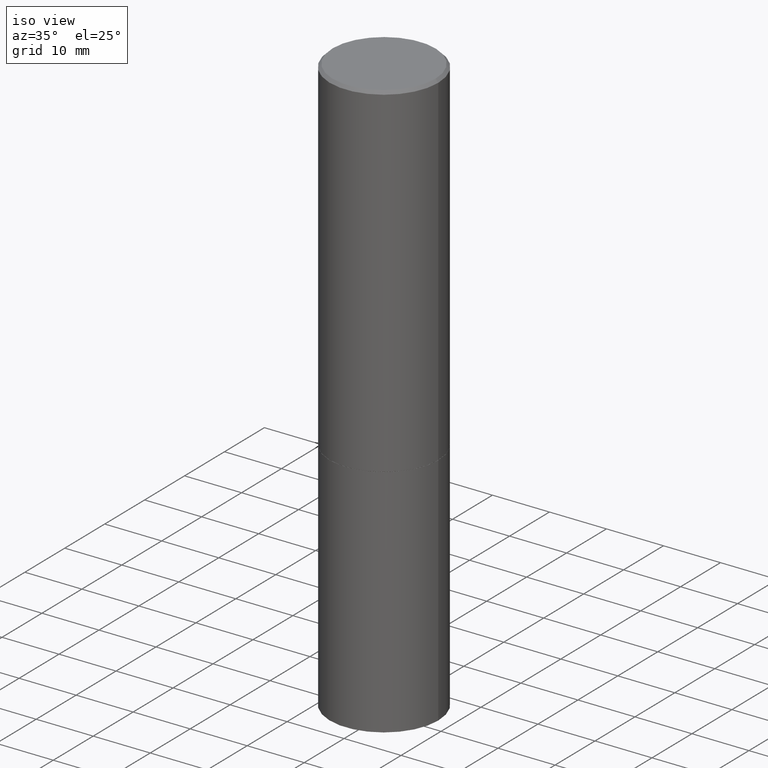
[diagram: clean part render]
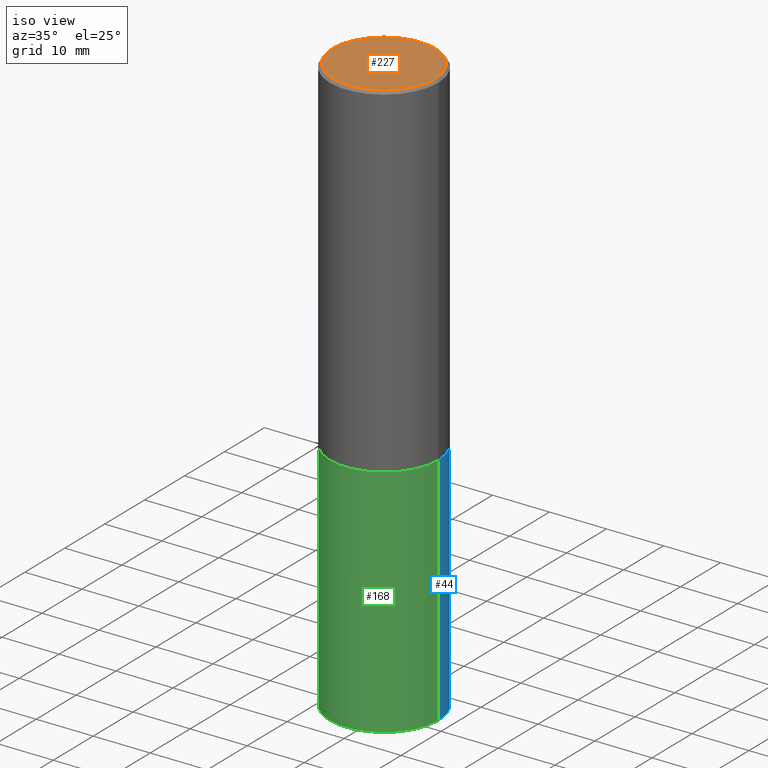
[diagram: same view with three faces highlighted in distinct colors, each labeled with its STEP entity id]
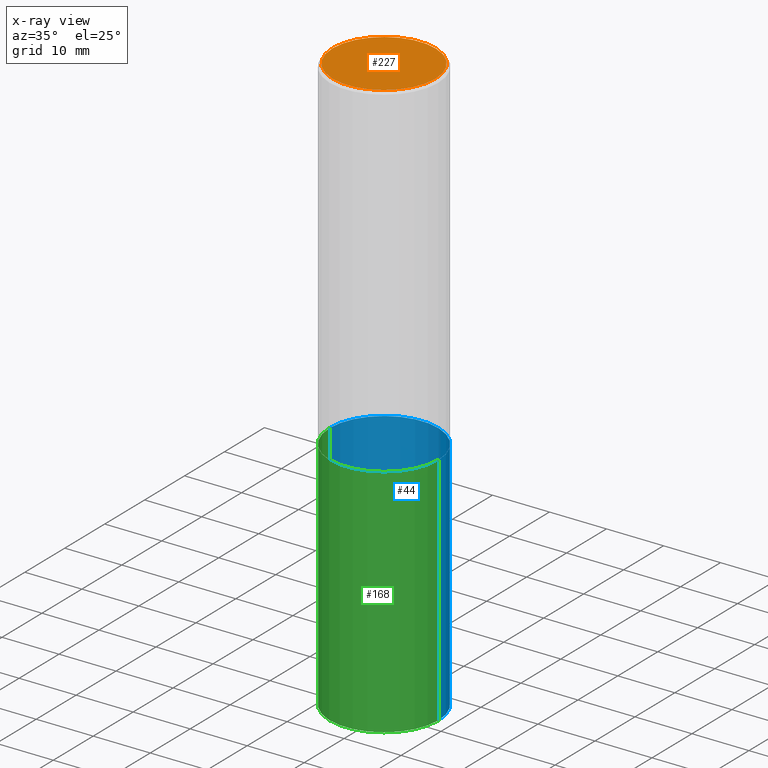
[diagram: x-ray of the same camera — body ghosted, the three highlighted faces saturated]
A machine part, iso view with three faces highlighted in distinct colors.
The next image is the same camera in x-ray (body ghosted, the three faces saturated) — at least one of them is partly hidden behind the body in this view.
Their STEP definitions:

[orange] entity #227 — the highlighted planar face has unit normal (0, -0, -1).
#3 = CIRCLE ( 'NONE', #409, 0.3549999999999997602 ) ;
#21 = DIRECTION ( 'NONE',  ( 1.000000000000000000, -6.982962677686266711E-15, 4.876231632511991546E-29 ) ) ;
#53 = CARTESIAN_POINT ( 'NONE',  ( -1.043851414335219820E-46, 1.490343170380447200E-32, 4.268512490100411279E-18 ) ) ;
#78 = VERTEX_POINT ( 'NONE', #295 ) ;
#80 = CARTESIAN_POINT ( 'NONE',  ( 2.478951750578623026E-15, 0.3549999999999997602, -1.237341619044265638E-15 ) ) ;
#91 = AXIS2_PLACEMENT_3D ( 'NONE', #53, #95, #21 ) ;
#95 = DIRECTION ( 'NONE',  ( -2.445468806185136597E-29, 3.491481338843145583E-15, 1.000000000000000000 ) ) ;
#127 = DIRECTION ( 'NONE',  ( 2.438088387897960049E-29, -3.491481338843145188E-15, -1.000000000000000000 ) ) ;
#136 = ORIENTED_EDGE ( 'NONE', *, *, #308, .T. ) ;
#147 = PLANE ( 'NONE',  #315 ) ;
#151 = VERTEX_POINT ( 'NONE', #162 ) ;
#155 = CIRCLE ( 'NONE', #91, 0.3549999999999997602 ) ;
#158 = DIRECTION ( 'NONE',  ( -1.000000000000000000, 6.982962677686265922E-15, -4.876176775795935793E-29 ) ) ;
#162 = CARTESIAN_POINT ( 'NONE',  ( -0.3549999999999997602, 2.513866563967053491E-15, 4.268512490082953109E-18 ) ) ;
#200 = DIRECTION ( 'NONE',  ( -2.445468806185136597E-29, 3.491481338843145583E-15, 1.000000000000000000 ) ) ;
#227 = ADVANCED_FACE ( 'NONE', ( #343 ), #147, .F. ) ;
#281 = EDGE_LOOP ( 'NONE', ( #435, #136 ) ) ;
#293 = CARTESIAN_POINT ( 'NONE',  ( -1.043851414335219820E-46, 1.490343170380447200E-32, 4.268512490100411279E-18 ) ) ;
#295 = CARTESIAN_POINT ( 'NONE',  ( 0.3549999999999997602, -2.538996582575039076E-15, 4.268512490117958041E-18 ) ) ;
#308 = EDGE_CURVE ( 'NONE', #78, #151, #3, .T. ) ;
#315 = AXIS2_PLACEMENT_3D ( 'NONE', #80, #127, #158 ) ;
#343 = FACE_OUTER_BOUND ( 'NONE', #281, .T. ) ;
#360 = DIRECTION ( 'NONE',  ( 1.000000000000000000, -6.982962677686266711E-15, 4.876231632511991546E-29 ) ) ;
#402 = EDGE_CURVE ( 'NONE', #151, #78, #155, .T. ) ;
#409 = AXIS2_PLACEMENT_3D ( 'NONE', #293, #200, #360 ) ;
#435 = ORIENTED_EDGE ( 'NONE', *, *, #402, .T. ) ;

[blue] entity #44 — the highlighted cylindrical surface (partial cylindrical patch) has radius 9.525 mm, axis along (-0, 0, 1).
#4 = CARTESIAN_POINT ( 'NONE',  ( -0.3750000000000000555, -8.464561508462150527E-15, -2.375000000000000000 ) ) ;
#8 = AXIS2_PLACEMENT_3D ( 'NONE', #141, #40, #175 ) ;
#23 = CIRCLE ( 'NONE', #250, 0.3750000000000000555 ) ;
#24 = LINE ( 'NONE', #28, #108 ) ;
#28 = CARTESIAN_POINT ( 'NONE',  ( -0.3750000000000000555, 2.664535259100376091E-15, -1.844600658845589598E-29 ) ) ;
#29 = VERTEX_POINT ( 'NONE', #4 ) ;
#30 = CARTESIAN_POINT ( 'NONE',  ( 5.807988414689699417E-29, -8.292268179752470118E-15, -2.375000000000000000 ) ) ;
#36 = CYLINDRICAL_SURFACE ( 'NONE', #8, 0.3750000000000000555 ) ;
#40 = DIRECTION ( 'NONE',  ( -2.445468806185136597E-29, 3.491481338843145583E-15, 1.000000000000000000 ) ) ;
#44 = ADVANCED_FACE ( 'NONE', ( #338 ), #36, .T. ) ;
#60 = CIRCLE ( 'NONE', #261, 0.3750000000000000555 ) ;
#67 = VERTEX_POINT ( 'NONE', #277 ) ;
#99 = ORIENTED_EDGE ( 'NONE', *, *, #137, .T. ) ;
#108 = VECTOR ( 'NONE', #257, 39.37007874015748143 ) ;
#113 = VERTEX_POINT ( 'NONE', #323 ) ;
#115 = ORIENTED_EDGE ( 'NONE', *, *, #350, .F. ) ;
#129 = DIRECTION ( 'NONE',  ( -2.445468806185136877E-29, 3.491481338843145188E-15, 1.000000000000000000 ) ) ;
#137 = EDGE_CURVE ( 'NONE', #67, #113, #23, .T. ) ;
#141 = CARTESIAN_POINT ( 'NONE',  ( 0.000000000000000000, 0.000000000000000000, 0.000000000000000000 ) ) ;
#164 = LINE ( 'NONE', #297, #244 ) ;
#169 = DIRECTION ( 'NONE',  ( -2.445468806185136597E-29, 3.491481338843145583E-15, 1.000000000000000000 ) ) ;
#175 = DIRECTION ( 'NONE',  ( 1.000000000000000000, -6.982962677686265922E-15, 4.876176775795935793E-29 ) ) ;
#194 = DIRECTION ( 'NONE',  ( -2.445468806185136597E-29, 3.491481338843145583E-15, 1.000000000000000000 ) ) ;
#236 = EDGE_CURVE ( 'NONE', #113, #29, #24, .T. ) ;
#244 = VECTOR ( 'NONE', #129, 39.37007874015748143 ) ;
#250 = AXIS2_PLACEMENT_3D ( 'NONE', #395, #194, #258 ) ;
#257 = DIRECTION ( 'NONE',  ( -2.445468806185136877E-29, 3.491481338843145188E-15, 1.000000000000000000 ) ) ;
#258 = DIRECTION ( 'NONE',  ( 1.000000000000000000, -6.982962677686266711E-15, 0.000000000000000000 ) ) ;
#261 = AXIS2_PLACEMENT_3D ( 'NONE', #30, #169, #299 ) ;
#265 = CARTESIAN_POINT ( 'NONE',  ( 0.3750000000000000555, -1.091087918388482013E-14, -2.375000000000000000 ) ) ;
#277 = CARTESIAN_POINT ( 'NONE',  ( 0.3750000000000000555, -1.658453635950493392E-14, -4.000000000000000000 ) ) ;
#283 = EDGE_LOOP ( 'NONE', ( #99, #311, #115, #362 ) ) ;
#297 = CARTESIAN_POINT ( 'NONE',  ( 0.3750000000000000555, -2.618611004132350016E-15, 1.828566290923476203E-29 ) ) ;
#299 = DIRECTION ( 'NONE',  ( 1.000000000000000000, -6.982962677686266711E-15, 0.000000000000000000 ) ) ;
#311 = ORIENTED_EDGE ( 'NONE', *, *, #236, .T. ) ;
#323 = CARTESIAN_POINT ( 'NONE',  ( -0.3750000000000000555, -8.464561508462150527E-15, -4.000000000000000000 ) ) ;
#338 = FACE_OUTER_BOUND ( 'NONE', #283, .T. ) ;
#350 = EDGE_CURVE ( 'NONE', #422, #29, #60, .T. ) ;
#362 = ORIENTED_EDGE ( 'NONE', *, *, #408, .F. ) ;
#395 = CARTESIAN_POINT ( 'NONE',  ( 9.781875224740546387E-29, -1.396592535537258233E-14, -4.000000000000000000 ) ) ;
#408 = EDGE_CURVE ( 'NONE', #67, #422, #164, .T. ) ;
#422 = VERTEX_POINT ( 'NONE', #265 ) ;

[green] entity #168 — the highlighted cylindrical surface (partial cylindrical patch) has radius 9.525 mm, axis along (-0, 0, 1).
#4 = CARTESIAN_POINT ( 'NONE',  ( -0.3750000000000000555, -8.464561508462150527E-15, -2.375000000000000000 ) ) ;
#6 = ORIENTED_EDGE ( 'NONE', *, *, #236, .F. ) ;
#19 = DIRECTION ( 'NONE',  ( -2.445468806185136597E-29, 3.491481338843145583E-15, 1.000000000000000000 ) ) ;
#24 = LINE ( 'NONE', #28, #108 ) ;
#27 = ORIENTED_EDGE ( 'NONE', *, *, #392, .F. ) ;
#28 = CARTESIAN_POINT ( 'NONE',  ( -0.3750000000000000555, 2.664535259100376091E-15, -1.844600658845589598E-29 ) ) ;
#29 = VERTEX_POINT ( 'NONE', #4 ) ;
#42 = EDGE_LOOP ( 'NONE', ( #6, #366, #423, #27 ) ) ;
#58 = AXIS2_PLACEMENT_3D ( 'NONE', #428, #255, #225 ) ;
#67 = VERTEX_POINT ( 'NONE', #277 ) ;
#84 = CYLINDRICAL_SURFACE ( 'NONE', #58, 0.3750000000000000555 ) ;
#108 = VECTOR ( 'NONE', #257, 39.37007874015748143 ) ;
#113 = VERTEX_POINT ( 'NONE', #323 ) ;
#124 = DIRECTION ( 'NONE',  ( 1.000000000000000000, -6.982962677686266711E-15, 0.000000000000000000 ) ) ;
#129 = DIRECTION ( 'NONE',  ( -2.445468806185136877E-29, 3.491481338843145188E-15, 1.000000000000000000 ) ) ;
#163 = CIRCLE ( 'NONE', #269, 0.3750000000000000555 ) ;
#164 = LINE ( 'NONE', #297, #244 ) ;
#168 = ADVANCED_FACE ( 'NONE', ( #253 ), #84, .T. ) ;
#225 = DIRECTION ( 'NONE',  ( 1.000000000000000000, -6.982962677686265922E-15, 4.876176775795935793E-29 ) ) ;
#236 = EDGE_CURVE ( 'NONE', #113, #29, #24, .T. ) ;
#244 = VECTOR ( 'NONE', #129, 39.37007874015748143 ) ;
#253 = FACE_OUTER_BOUND ( 'NONE', #42, .T. ) ;
#255 = DIRECTION ( 'NONE',  ( -2.445468806185136597E-29, 3.491481338843145583E-15, 1.000000000000000000 ) ) ;
#257 = DIRECTION ( 'NONE',  ( -2.445468806185136877E-29, 3.491481338843145188E-15, 1.000000000000000000 ) ) ;
#263 = CARTESIAN_POINT ( 'NONE',  ( 9.781875224740546387E-29, -1.396592535537258233E-14, -4.000000000000000000 ) ) ;
#265 = CARTESIAN_POINT ( 'NONE',  ( 0.3750000000000000555, -1.091087918388482013E-14, -2.375000000000000000 ) ) ;
#269 = AXIS2_PLACEMENT_3D ( 'NONE', #263, #301, #124 ) ;
#273 = EDGE_CURVE ( 'NONE', #113, #67, #163, .T. ) ;
#277 = CARTESIAN_POINT ( 'NONE',  ( 0.3750000000000000555, -1.658453635950493392E-14, -4.000000000000000000 ) ) ;
#287 = CIRCLE ( 'NONE', #417, 0.3750000000000000555 ) ;
#291 = DIRECTION ( 'NONE',  ( 1.000000000000000000, -6.982962677686266711E-15, 0.000000000000000000 ) ) ;
#297 = CARTESIAN_POINT ( 'NONE',  ( 0.3750000000000000555, -2.618611004132350016E-15, 1.828566290923476203E-29 ) ) ;
#301 = DIRECTION ( 'NONE',  ( -2.445468806185136597E-29, 3.491481338843145583E-15, 1.000000000000000000 ) ) ;
#323 = CARTESIAN_POINT ( 'NONE',  ( -0.3750000000000000555, -8.464561508462150527E-15, -4.000000000000000000 ) ) ;
#324 = CARTESIAN_POINT ( 'NONE',  ( 5.807988414689699417E-29, -8.292268179752470118E-15, -2.375000000000000000 ) ) ;
#366 = ORIENTED_EDGE ( 'NONE', *, *, #273, .T. ) ;
#392 = EDGE_CURVE ( 'NONE', #29, #422, #287, .T. ) ;
#408 = EDGE_CURVE ( 'NONE', #67, #422, #164, .T. ) ;
#417 = AXIS2_PLACEMENT_3D ( 'NONE', #324, #19, #291 ) ;
#422 = VERTEX_POINT ( 'NONE', #265 ) ;
#423 = ORIENTED_EDGE ( 'NONE', *, *, #408, .T. ) ;
#428 = CARTESIAN_POINT ( 'NONE',  ( 0.000000000000000000, 0.000000000000000000, 0.000000000000000000 ) ) ;